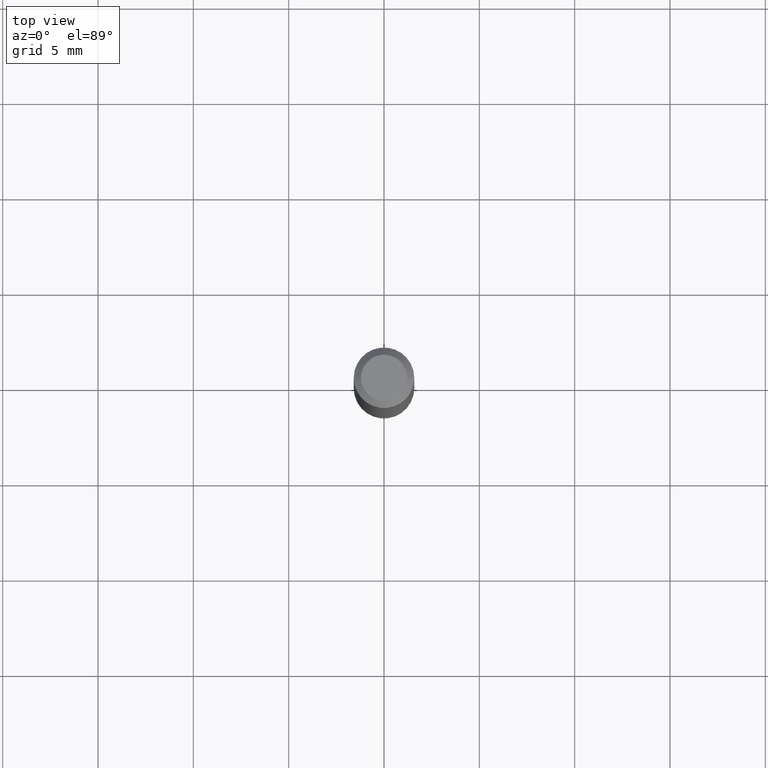
[diagram: clean part render]
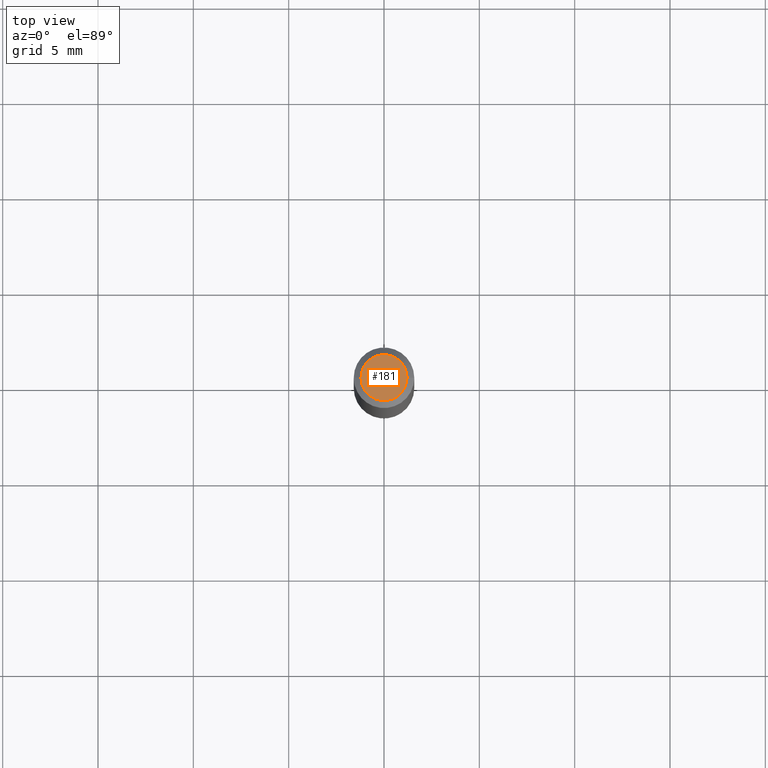
[diagram: same view with one face highlighted and labeled with its STEP entity id]
A machine part, top view. The second image highlights one B-rep face of the part: STEP entity #181.
In plain terms, the highlighted planar face has unit normal (0, -0, -1).
Its self-contained STEP definition (entity closure, byte-faithful):
#14 = EDGE_LOOP ( 'NONE', ( #407, #428 ) ) ;
#26 = DIRECTION ( 'NONE',  ( 2.438088387897960049E-29, -3.491481338843145188E-15, -1.000000000000000000 ) ) ;
#37 = DIRECTION ( 'NONE',  ( -2.445468806185136597E-29, 3.491481338843145583E-15, 1.000000000000000000 ) ) ;
#40 = AXIS2_PLACEMENT_3D ( 'NONE', #311, #26, #279 ) ;
#60 = CIRCLE ( 'NONE', #204, 0.04749999999999999362 ) ;
#112 = DIRECTION ( 'NONE',  ( 1.000000000000000000, -6.982962677686267499E-15, 4.852736867747366768E-29 ) ) ;
#135 = FACE_OUTER_BOUND ( 'NONE', #14, .T. ) ;
#150 = CIRCLE ( 'NONE', #411, 0.04749999999999999362 ) ;
#163 = PLANE ( 'NONE',  #40 ) ;
#170 = CARTESIAN_POINT ( 'NONE',  ( -1.505681066337554235E-44, 2.149713515899588158E-30, 6.157024217726067260E-16 ) ) ;
#173 = EDGE_CURVE ( 'NONE', #291, #369, #150, .T. ) ;
#181 = ADVANCED_FACE ( 'NONE', ( #135 ), #163, .F. ) ;
#204 = AXIS2_PLACEMENT_3D ( 'NONE', #355, #37, #112 ) ;
#213 = CARTESIAN_POINT ( 'NONE',  ( -0.04749999999999999362, 3.578768372314221353E-16, 6.157024217726043594E-16 ) ) ;
#279 = DIRECTION ( 'NONE',  ( -1.000000000000000000, 6.982962677686265922E-15, -4.876176775795935793E-29 ) ) ;
#291 = VERTEX_POINT ( 'NONE', #213 ) ;
#292 = CARTESIAN_POINT ( 'NONE',  ( 0.04749999999999999362, -4.035134999187568269E-16, 6.157024217726092898E-16 ) ) ;
#311 = CARTESIAN_POINT ( 'NONE',  ( 3.316907271900976096E-16, 0.04749999999999999362, 1.420058472912539912E-16 ) ) ;
#343 = EDGE_CURVE ( 'NONE', #369, #291, #60, .T. ) ;
#355 = CARTESIAN_POINT ( 'NONE',  ( -1.505681066337554235E-44, 2.149713515899588158E-30, 6.157024217726067260E-16 ) ) ;
#369 = VERTEX_POINT ( 'NONE', #292 ) ;
#407 = ORIENTED_EDGE ( 'NONE', *, *, #173, .T. ) ;
#411 = AXIS2_PLACEMENT_3D ( 'NONE', #170, #450, #421 ) ;
#421 = DIRECTION ( 'NONE',  ( 1.000000000000000000, -6.982962677686267499E-15, 4.852736867747366768E-29 ) ) ;
#428 = ORIENTED_EDGE ( 'NONE', *, *, #343, .T. ) ;
#450 = DIRECTION ( 'NONE',  ( -2.445468806185136597E-29, 3.491481338843145583E-15, 1.000000000000000000 ) ) ;